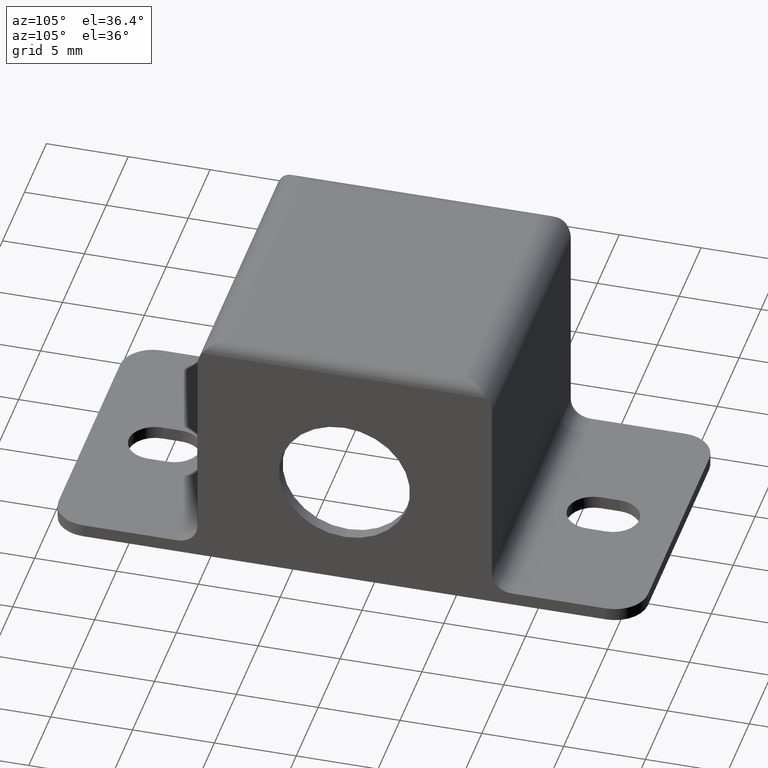
[diagram: clean part render]
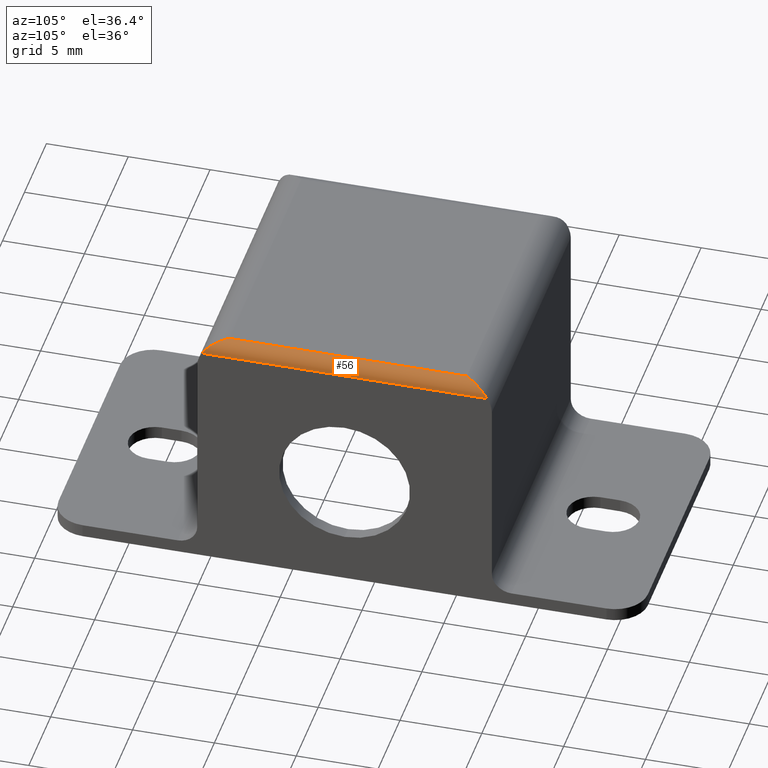
[diagram: same view with one face highlighted and labeled with its STEP entity id]
A machine part, auxiliary view. The second image highlights one B-rep face of the part: STEP entity #56.
In plain terms, the highlighted cylindrical surface (edge-blend (fillet) strip) has radius 0.8 mm, axis along (-0, -1, -0).
Its self-contained STEP definition (entity closure, byte-faithful):
#56=ADVANCED_FACE('',(#245),#244,.T.);
#244=CYLINDRICAL_SURFACE('',#564,8.00000000000E-01);
#245=FACE_OUTER_BOUND('',#565,.T.);
#561=CARTESIAN_POINT('',(1.72000000000E+01,6.15000000000E+00,1.40000000000E+01));
#562=DIRECTION('',(-0.00000000000E+00,-1.00000000000E+00,-4.84167303950E-13));
#563=DIRECTION('',(-0.00000000000E+00,4.84167303950E-13,-1.00000000000E+00));
#564=AXIS2_PLACEMENT_3D('',#561,#562,#563);
#565=EDGE_LOOP('',(#786,#787,#788,#789));
#786=ORIENTED_EDGE('',*,*,#907,.F.);
#787=ORIENTED_EDGE('',*,*,#932,.F.);
#788=ORIENTED_EDGE('',*,*,#897,.F.);
#789=ORIENTED_EDGE('',*,*,#902,.F.);
#897=EDGE_CURVE('',#1017,#1024,#1025,.T.);
#902=EDGE_CURVE('',#1051,#1017,#1058,.T.);
#907=EDGE_CURVE('',#1085,#1051,#1092,.T.);
#932=EDGE_CURVE('',#1024,#1085,#1262,.T.);
#1017=VERTEX_POINT('',#1739);
#1024=VERTEX_POINT('',#1743);
#1025=(BOUNDED_CURVE() B_SPLINE_CURVE(3,(#1744,#1745,#1746,#1747,#1748,#1749,#1750,#1751,#1752,#1753),.UNSPECIFIED.,.F.,.F.) B_SPLINE_CURVE_WITH_KNOTS((4,2,2,2,4),(-1.93834991033E-03,-1.45376243275E-03,-9.69174955164E-04,-4.84587477582E-04,-1.73472347598E-18),.UNSPECIFIED.) CURVE() GEOMETRIC_REPRESENTATION_ITEM() RATIONAL_B_SPLINE_CURVE((1.00000000000E+00,1.00000000000E+00,1.00000000000E+00,1.00000000000E+00,1.00000000000E+00,1.00000000000E+00,1.00000000000E+00,1.00000000000E+00,1.00000000000E+00,1.00000000000E+00)) REPRESENTATION_ITEM('') );
#1051=VERTEX_POINT('',#1766);
#1058=LINE('',#1770,#1771);
#1085=VERTEX_POINT('',#1793);
#1092=(BOUNDED_CURVE() B_SPLINE_CURVE(3,(#1798,#1799,#1800,#1801,#1802,#1803,#1804,#1805,#1806,#1807),.UNSPECIFIED.,.F.,.F.) B_SPLINE_CURVE_WITH_KNOTS((4,2,2,2,4),(2.45326946669E-18,4.84587477582E-04,9.69174955164E-04,1.45376243275E-03,1.93834991033E-03),.UNSPECIFIED.) CURVE() GEOMETRIC_REPRESENTATION_ITEM() RATIONAL_B_SPLINE_CURVE((1.00000000000E+00,1.00000000000E+00,1.00000000000E+00,1.00000000000E+00,1.00000000000E+00,1.00000000000E+00,1.00000000000E+00,1.00000000000E+00,1.00000000000E+00,1.00000000000E+00)) REPRESENTATION_ITEM('') );
#1262=LINE('',#1910,#1911);
#1739=CARTESIAN_POINT('',(1.72000000000E+01,2.06500000000E+01,1.48000000000E+01));
#1743=CARTESIAN_POINT('',(1.80000000000E+01,2.21196938457E+01,1.40000000000E+01));
#1744=CARTESIAN_POINT('',(1.72000000000E+01,2.06500000000E+01,1.48000000000E+01));
#1745=CARTESIAN_POINT('',(1.72904744032E+01,2.07838137581E+01,1.48000000000E+01));
#1746=CARTESIAN_POINT('',(1.73827159471E+01,2.09202191080E+01,1.47843426260E+01));
#1747=CARTESIAN_POINT('',(1.75570950138E+01,2.11846903022E+01,1.47218459832E+01));
#1748=CARTESIAN_POINT('',(1.76405224396E+01,2.13144236780E+01,1.46753220969E+01));
#1749=CARTESIAN_POINT('',(1.77940041654E+01,2.15705482436E+01,1.45452329831E+01));
#1750=CARTESIAN_POINT('',(1.78621808729E+01,2.16935294878E+01,1.44632669076E+01));
#1751=CARTESIAN_POINT('',(1.79655152738E+01,2.19245871212E+01,1.42590098488E+01));
#1752=CARTESIAN_POINT('',(1.80000000000E+01,2.20303522408E+01,1.41382155862E+01));
#1753=CARTESIAN_POINT('',(1.80000000000E+01,2.21196938457E+01,1.40000000000E+01));
#1766=CARTESIAN_POINT('',(1.72000000000E+01,6.15000000000E+00,1.48000000000E+01));
#1770=CARTESIAN_POINT('',(1.72000000000E+01,6.15000000000E+00,1.48000000000E+01));
#1771=VECTOR('',#1772,1.45000000000E+01);
#1772=DIRECTION('',(0.00000000000E+00,1.00000000000E+00,4.84149119263E-13));
#1793=CARTESIAN_POINT('',(1.80000000000E+01,4.68030615433E+00,1.40000000000E+01));
#1798=CARTESIAN_POINT('',(1.80000000000E+01,4.68030615433E+00,1.40000000000E+01));
#1799=CARTESIAN_POINT('',(1.80000000000E+01,4.76964775923E+00,1.41382155862E+01));
#1800=CARTESIAN_POINT('',(1.79655152738E+01,4.87541287876E+00,1.42590098487E+01));
#1801=CARTESIAN_POINT('',(1.78621808729E+01,5.10647051224E+00,1.44632669076E+01));
#1802=CARTESIAN_POINT('',(1.77940041654E+01,5.22945175641E+00,1.45452329831E+01));
#1803=CARTESIAN_POINT('',(1.76405224396E+01,5.48557632201E+00,1.46753220969E+01));
#1804=CARTESIAN_POINT('',(1.75570950138E+01,5.61530969776E+00,1.47218459832E+01));
#1805=CARTESIAN_POINT('',(1.73827159471E+01,5.87978089198E+00,1.47843426260E+01));
#1806=CARTESIAN_POINT('',(1.72904744032E+01,6.01618624189E+00,1.48000000000E+01));
#1807=CARTESIAN_POINT('',(1.72000000000E+01,6.15000000000E+00,1.48000000000E+01));
#1910=CARTESIAN_POINT('',(1.80000000000E+01,2.21196938457E+01,1.40000000000E+01));
#1911=VECTOR('',#1912,1.74393876913E+01);
#1912=DIRECTION('',(0.00000000000E+00,-1.00000000000E+00,-4.84237208552E-13));